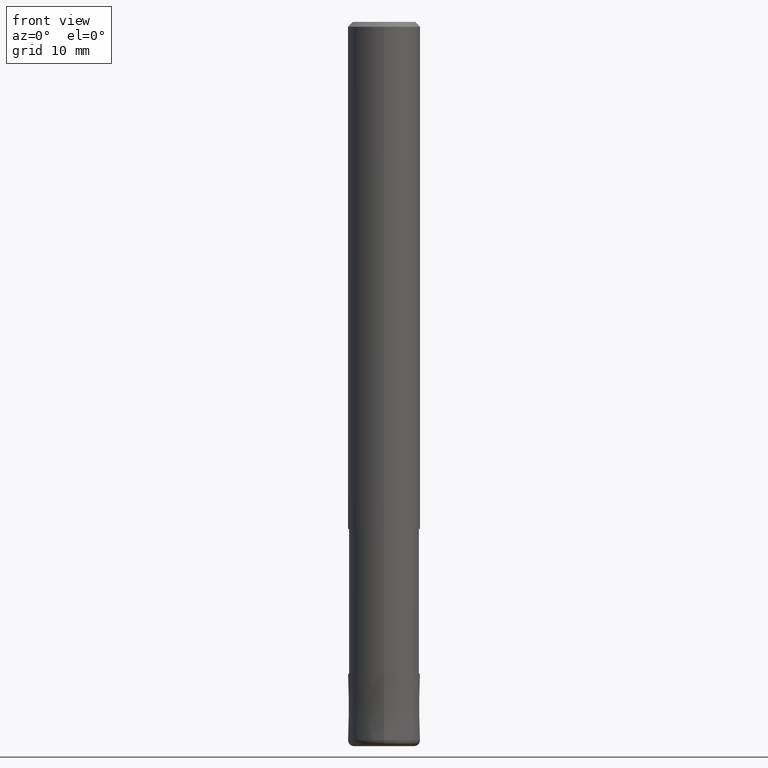
[diagram: clean part render]
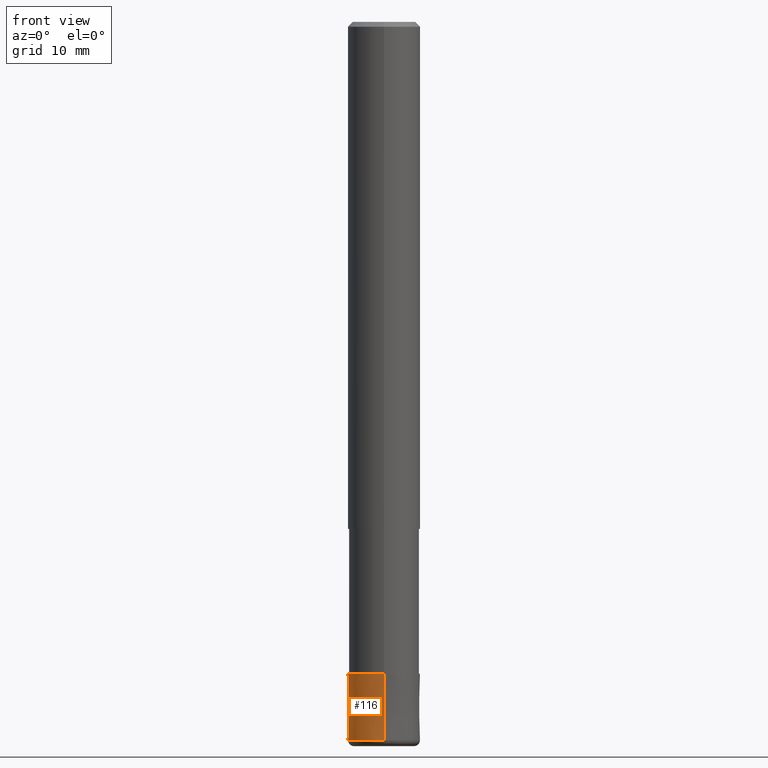
[diagram: same view with one face highlighted and labeled with its STEP entity id]
A machine part, front view. The second image highlights one B-rep face of the part: STEP entity #116.
In plain terms, the highlighted conical surface has half-angle 0.001 deg.
Its self-contained STEP definition (entity closure, byte-faithful):
#102=EDGE_CURVE('',#194,#162,#239,.T.);
#116=ADVANCED_FACE('',(#254),#255,.T.);
#134=EDGE_CURVE('',#194,#186,#276,.T.);
#142=VERTEX_POINT('',#284);
#152=EDGE_CURVE('',#162,#142,#296,.T.);
#162=VERTEX_POINT('',#307);
#186=VERTEX_POINT('',#336);
#194=VERTEX_POINT('',#345);
#200=EDGE_CURVE('',#142,#186,#352,.T.);
#239=LINE('',#389,#390);
#254=FACE_OUTER_BOUND('',#409,.T.);
#255=CONICAL_SURFACE('',#410,2.99995,1.8181818179853E-005);
#276=CIRCLE('',#433,3.0);
#284=CARTESIAN_POINT('',(0.0,2.9999,-54.0));
#296=CIRCLE('',#458,2.9999);
#307=CARTESIAN_POINT('',(3.67369660083175E-016,-2.9999,-54.0));
#336=CARTESIAN_POINT('',(0.0,3.0,-59.5));
#345=CARTESIAN_POINT('',(3.67381906146713E-016,-3.0,-59.5));
#352=LINE('',#524,#525);
#389=CARTESIAN_POINT('',(3.67375783114944E-016,-2.99995,-56.75));
#390=VECTOR('',#552,1.0);
#409=EDGE_LOOP('',(#569,#570,#571,#572));
#410=AXIS2_PLACEMENT_3D('',#573,#574,#575);
#433=AXIS2_PLACEMENT_3D('',#609,#610,#611);
#458=AXIS2_PLACEMENT_3D('',#635,#636,#637);
#524=CARTESIAN_POINT('',(-3.67375783114944E-016,2.99995,-56.75));
#525=VECTOR('',#700,1.0);
#552=DIRECTION('',(-2.22655700658645E-021,1.81818181788513E-005,0.999999999834711));
#569=ORIENTED_EDGE('',*,*,#200,.T.);
#570=ORIENTED_EDGE('',*,*,#134,.F.);
#571=ORIENTED_EDGE('',*,*,#102,.T.);
#572=ORIENTED_EDGE('',*,*,#152,.T.);
#573=CARTESIAN_POINT('',(0.0,0.0,-56.75));
#574=DIRECTION('',(0.0,-0.0,-1.0));
#575=DIRECTION('',(0.0,1.0,0.0));
#609=CARTESIAN_POINT('',(0.0,0.0,-59.5));
#610=DIRECTION('',(0.0,0.0,-1.0));
#611=DIRECTION('',(0.0,1.0,0.0));
#635=CARTESIAN_POINT('',(0.0,0.0,-54.0));
#636=DIRECTION('',(0.0,0.0,-1.0));
#637=DIRECTION('',(0.0,1.0,0.0));
#700=DIRECTION('',(-2.22655700658645E-021,1.81818181788513E-005,-0.999999999834711));